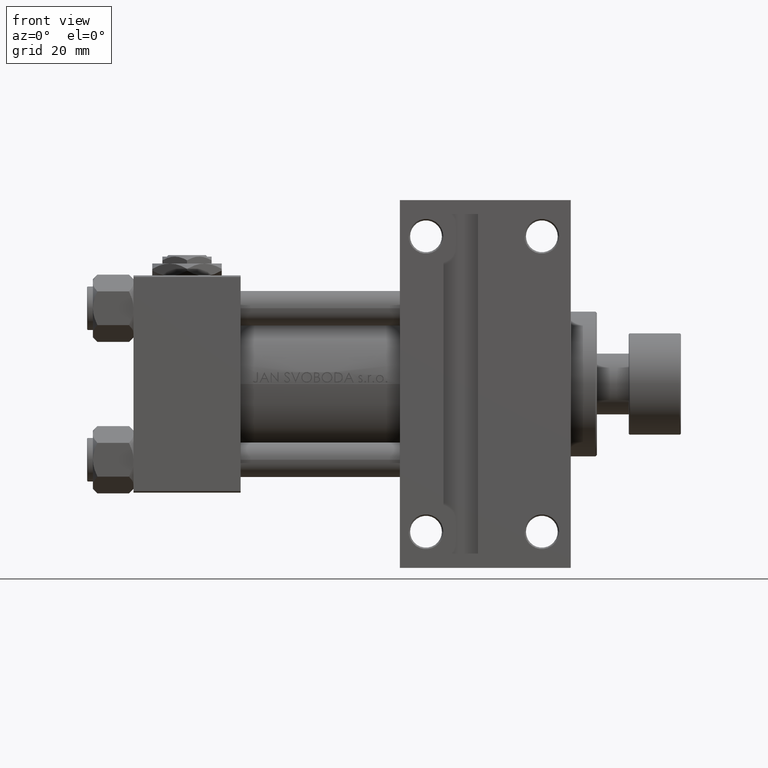
[diagram: clean part render]
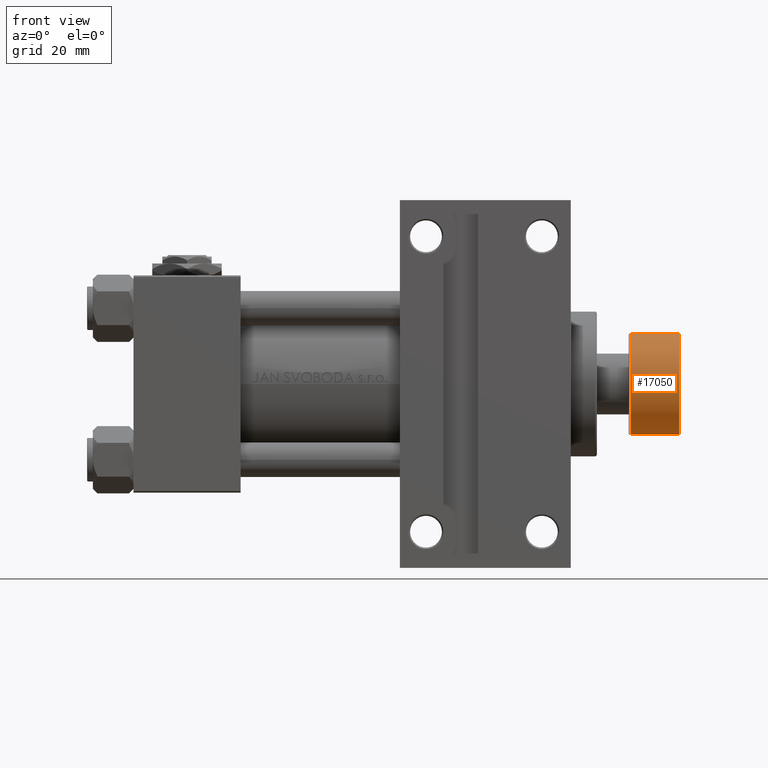
[diagram: same view with one face highlighted and labeled with its STEP entity id]
A machine part, front view. The second image highlights one B-rep face of the part: STEP entity #17050.
In plain terms, the highlighted cylindrical surface (partial cylindrical patch) has radius 17.5 mm, axis along (1, 0, 0).
Its self-contained STEP definition (entity closure, byte-faithful):
#1107 = VECTOR ( 'NONE', #26108, 1000.000000000000000 ) ;
#1212 = EDGE_LOOP ( 'NONE', ( #13693, #7772, #6344, #27578 ) ) ;
#2029 = VERTEX_POINT ( 'NONE', #9069 ) ;
#2509 = EDGE_CURVE ( 'NONE', #37444, #46571, #34318, .T. ) ;
#2748 = FACE_OUTER_BOUND ( 'NONE', #1212, .T. ) ;
#3518 = CARTESIAN_POINT ( 'NONE',  ( -17.50000000000000355, 2.143131898507868643E-15, -18.00000000000000000 ) ) ;
#6344 = ORIENTED_EDGE ( 'NONE', *, *, #38556, .T. ) ;
#6776 = AXIS2_PLACEMENT_3D ( 'NONE', #29883, #17723, #14414 ) ;
#7772 = ORIENTED_EDGE ( 'NONE', *, *, #29521, .T. ) ;
#9069 = CARTESIAN_POINT ( 'NONE',  ( -17.50000000000000355, 2.143131898507868643E-15, -17.49999999999999645 ) ) ;
#9971 = CARTESIAN_POINT ( 'NONE',  ( 17.50000000000000355, 0.000000000000000000, -17.49999999999999645 ) ) ;
#10203 = DIRECTION ( 'NONE',  ( 1.000000000000000000, 0.000000000000000000, 0.000000000000000000 ) ) ;
#12477 = AXIS2_PLACEMENT_3D ( 'NONE', #48256, #28958, #10203 ) ;
#13061 = LINE ( 'NONE', #31662, #49595 ) ;
#13693 = ORIENTED_EDGE ( 'NONE', *, *, #17552, .F. ) ;
#14304 = VERTEX_POINT ( 'NONE', #9971 ) ;
#14414 = DIRECTION ( 'NONE',  ( 1.000000000000000000, 0.000000000000000000, 0.000000000000000000 ) ) ;
#17050 = ADVANCED_FACE ( 'NONE', ( #2748 ), #48178, .T. ) ;
#17552 = EDGE_CURVE ( 'NONE', #2029, #46571, #38517, .T. ) ;
#17723 = DIRECTION ( 'NONE',  ( 0.000000000000000000, 0.000000000000000000, 1.000000000000000000 ) ) ;
#17907 = CARTESIAN_POINT ( 'NONE',  ( -17.50000000000000355, 2.143131898507868643E-15, -0.5000000000000004441 ) ) ;
#18656 = CARTESIAN_POINT ( 'NONE',  ( 17.50000000000000355, 0.000000000000000000, -0.5000000000000004441 ) ) ;
#19217 = CIRCLE ( 'NONE', #33024, 17.50000000000000355 ) ;
#26108 = DIRECTION ( 'NONE',  ( 0.000000000000000000, 0.000000000000000000, 1.000000000000000000 ) ) ;
#27254 = CARTESIAN_POINT ( 'NONE',  ( 0.000000000000000000, 0.000000000000000000, -17.49999999999999645 ) ) ;
#27578 = ORIENTED_EDGE ( 'NONE', *, *, #2509, .T. ) ;
#28958 = DIRECTION ( 'NONE',  ( -0.000000000000000000, -0.000000000000000000, -1.000000000000000000 ) ) ;
#29521 = EDGE_CURVE ( 'NONE', #2029, #14304, #19217, .T. ) ;
#29883 = CARTESIAN_POINT ( 'NONE',  ( 0.000000000000000000, 0.000000000000000000, -18.00000000000000000 ) ) ;
#31662 = CARTESIAN_POINT ( 'NONE',  ( 17.50000000000000355, 0.000000000000000000, -18.00000000000000000 ) ) ;
#33024 = AXIS2_PLACEMENT_3D ( 'NONE', #27254, #42735, #41731 ) ;
#34318 = CIRCLE ( 'NONE', #12477, 17.50000000000000355 ) ;
#37444 = VERTEX_POINT ( 'NONE', #18656 ) ;
#38517 = LINE ( 'NONE', #3518, #1107 ) ;
#38556 = EDGE_CURVE ( 'NONE', #14304, #37444, #13061, .T. ) ;
#40460 = DIRECTION ( 'NONE',  ( 0.000000000000000000, 0.000000000000000000, 1.000000000000000000 ) ) ;
#41731 = DIRECTION ( 'NONE',  ( 1.000000000000000000, 0.000000000000000000, 0.000000000000000000 ) ) ;
#42735 = DIRECTION ( 'NONE',  ( 0.000000000000000000, 0.000000000000000000, 1.000000000000000000 ) ) ;
#46571 = VERTEX_POINT ( 'NONE', #17907 ) ;
#48178 = CYLINDRICAL_SURFACE ( 'NONE', #6776, 17.50000000000000355 ) ;
#48256 = CARTESIAN_POINT ( 'NONE',  ( 0.000000000000000000, 0.000000000000000000, -0.5000000000000004441 ) ) ;
#49595 = VECTOR ( 'NONE', #40460, 1000.000000000000000 ) ;